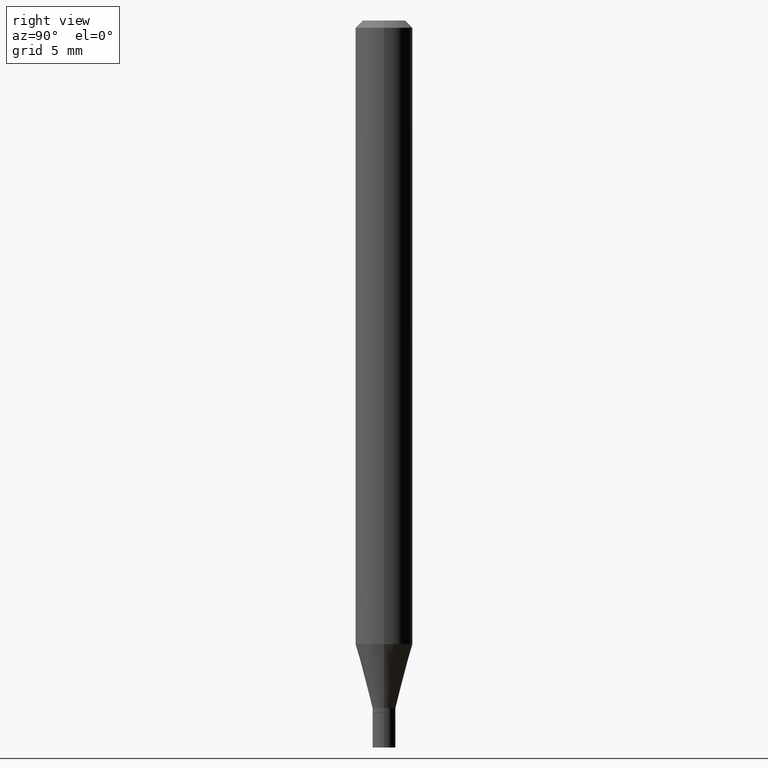
[diagram: clean part render]
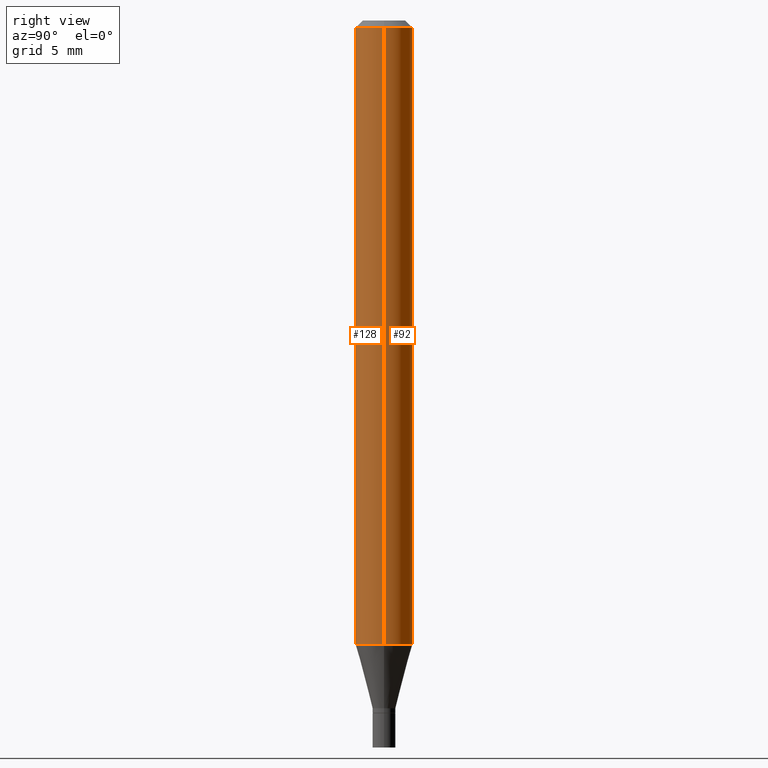
[diagram: same view with one multi-face feature highlighted, each face labeled with its STEP entity id]
A machine part, right view. The highlighted faces form ONE feature: a constant-radius fillet chain: 2 tangent blend faces with common blend radius 1.4999 mm. The faces share edges in the B-rep.
Their STEP definitions:
[1] entity #92 (Cylinder):
#3 = CYLINDRICAL_SURFACE ( 'NONE', #246, 0.05904999999999999832 ) ;
#6 = CARTESIAN_POINT ( 'NONE',  ( 0.05904999999999999832, -4.647161662000212105E-16, -0.01499999999999999944 ) ) ;
#8 = ORIENTED_EDGE ( 'NONE', *, *, #137, .T. ) ;
#21 = EDGE_CURVE ( 'NONE', #156, #453, #356, .T. ) ;
#27 = CARTESIAN_POINT ( 'NONE',  ( 0.05904999999999999832, -4.123439461173740327E-16, 2.879382386107500220E-30 ) ) ;
#45 = DIRECTION ( 'NONE',  ( -2.445468806185136877E-29, 3.491481338843145188E-15, 1.000000000000000000 ) ) ;
#59 = ORIENTED_EDGE ( 'NONE', *, *, #21, .F. ) ;
#79 = CARTESIAN_POINT ( 'NONE',  ( -0.05904999999999999832, 4.195754854663391478E-16, -2.904631170795521892E-30 ) ) ;
#88 = VECTOR ( 'NONE', #216, 39.37007874015748143 ) ;
#92 = ADVANCED_FACE ( 'NONE', ( #402 ), #3, .T. ) ;
#96 = ORIENTED_EDGE ( 'NONE', *, *, #193, .T. ) ;
#124 = DIRECTION ( 'NONE',  ( -2.445468806185136597E-29, 3.491481338843145583E-15, 1.000000000000000000 ) ) ;
#137 = EDGE_CURVE ( 'NONE', #192, #453, #457, .T. ) ;
#146 = CARTESIAN_POINT ( 'NONE',  ( -0.05904999999999999832, -4.072909359506036864E-15, -1.286698798871684257 ) ) ;
#156 = VERTEX_POINT ( 'NONE', #6 ) ;
#172 = DIRECTION ( 'NONE',  ( 1.000000000000000000, -6.982962677686266711E-15, 4.876176775795936353E-29 ) ) ;
#185 = CIRCLE ( 'NONE', #266, 0.05904999999999999832 ) ;
#192 = VERTEX_POINT ( 'NONE', #146 ) ;
#193 = EDGE_CURVE ( 'NONE', #280, #192, #185, .T. ) ;
#216 = DIRECTION ( 'NONE',  ( -2.445468806185136877E-29, 3.491481338843145188E-15, 1.000000000000000000 ) ) ;
#218 = VECTOR ( 'NONE', #45, 39.37007874015748143 ) ;
#224 = CARTESIAN_POINT ( 'NONE',  ( 0.05904999999999999832, -4.904828791089749700E-15, -1.286698798871684257 ) ) ;
#232 = EDGE_LOOP ( 'NONE', ( #96, #8, #59, #381 ) ) ;
#246 = AXIS2_PLACEMENT_3D ( 'NONE', #255, #291, #172 ) ;
#255 = CARTESIAN_POINT ( 'NONE',  ( 0.000000000000000000, 0.000000000000000000, 0.000000000000000000 ) ) ;
#266 = AXIS2_PLACEMENT_3D ( 'NONE', #377, #124, #295 ) ;
#280 = VERTEX_POINT ( 'NONE', #224 ) ;
#291 = DIRECTION ( 'NONE',  ( -2.445468806185136597E-29, 3.491481338843145583E-15, 1.000000000000000000 ) ) ;
#295 = DIRECTION ( 'NONE',  ( 1.000000000000000000, -6.982962677686273021E-15, 0.000000000000000000 ) ) ;
#297 = AXIS2_PLACEMENT_3D ( 'NONE', #343, #458, #454 ) ;
#328 = CARTESIAN_POINT ( 'NONE',  ( -0.05904999999999999832, -1.852853047061172422E-15, -0.01499999999999999944 ) ) ;
#343 = CARTESIAN_POINT ( 'NONE',  ( 3.668203209277705088E-31, -5.237222008264718399E-17, -0.01499999999999999944 ) ) ;
#356 = CIRCLE ( 'NONE', #297, 0.05904999999999999832 ) ;
#377 = CARTESIAN_POINT ( 'NONE',  ( 3.146581775596586990E-29, -4.492484844972376357E-15, -1.286698798871684257 ) ) ;
#381 = ORIENTED_EDGE ( 'NONE', *, *, #388, .F. ) ;
#388 = EDGE_CURVE ( 'NONE', #280, #156, #416, .T. ) ;
#402 = FACE_OUTER_BOUND ( 'NONE', #232, .T. ) ;
#416 = LINE ( 'NONE', #27, #218 ) ;
#453 = VERTEX_POINT ( 'NONE', #328 ) ;
#454 = DIRECTION ( 'NONE',  ( 1.000000000000000000, -6.982962677686266711E-15, 0.000000000000000000 ) ) ;
#457 = LINE ( 'NONE', #79, #88 ) ;
#458 = DIRECTION ( 'NONE',  ( -2.445468806185136597E-29, 3.491481338843145583E-15, 1.000000000000000000 ) ) ;
[2] entity #128 (Cylinder):
#6 = CARTESIAN_POINT ( 'NONE',  ( 0.05904999999999999832, -4.647161662000212105E-16, -0.01499999999999999944 ) ) ;
#12 = ORIENTED_EDGE ( 'NONE', *, *, #83, .T. ) ;
#16 = DIRECTION ( 'NONE',  ( 1.000000000000000000, -6.982962677686266711E-15, 4.876176775795936353E-29 ) ) ;
#27 = CARTESIAN_POINT ( 'NONE',  ( 0.05904999999999999832, -4.123439461173740327E-16, 2.879382386107500220E-30 ) ) ;
#45 = DIRECTION ( 'NONE',  ( -2.445468806185136877E-29, 3.491481338843145188E-15, 1.000000000000000000 ) ) ;
#52 = DIRECTION ( 'NONE',  ( 1.000000000000000000, -6.982962677686273021E-15, 0.000000000000000000 ) ) ;
#79 = CARTESIAN_POINT ( 'NONE',  ( -0.05904999999999999832, 4.195754854663391478E-16, -2.904631170795521892E-30 ) ) ;
#83 = EDGE_CURVE ( 'NONE', #192, #280, #312, .T. ) ;
#88 = VECTOR ( 'NONE', #216, 39.37007874015748143 ) ;
#102 = DIRECTION ( 'NONE',  ( -2.445468806185136597E-29, 3.491481338843145583E-15, 1.000000000000000000 ) ) ;
#123 = CYLINDRICAL_SURFACE ( 'NONE', #134, 0.05904999999999999832 ) ;
#128 = ADVANCED_FACE ( 'NONE', ( #152 ), #123, .T. ) ;
#134 = AXIS2_PLACEMENT_3D ( 'NONE', #423, #340, #16 ) ;
#137 = EDGE_CURVE ( 'NONE', #192, #453, #457, .T. ) ;
#146 = CARTESIAN_POINT ( 'NONE',  ( -0.05904999999999999832, -4.072909359506036864E-15, -1.286698798871684257 ) ) ;
#152 = FACE_OUTER_BOUND ( 'NONE', #345, .T. ) ;
#156 = VERTEX_POINT ( 'NONE', #6 ) ;
#192 = VERTEX_POINT ( 'NONE', #146 ) ;
#210 = DIRECTION ( 'NONE',  ( 1.000000000000000000, -6.982962677686266711E-15, 0.000000000000000000 ) ) ;
#216 = DIRECTION ( 'NONE',  ( -2.445468806185136877E-29, 3.491481338843145188E-15, 1.000000000000000000 ) ) ;
#218 = VECTOR ( 'NONE', #45, 39.37007874015748143 ) ;
#224 = CARTESIAN_POINT ( 'NONE',  ( 0.05904999999999999832, -4.904828791089749700E-15, -1.286698798871684257 ) ) ;
#226 = DIRECTION ( 'NONE',  ( -2.445468806185136597E-29, 3.491481338843145583E-15, 1.000000000000000000 ) ) ;
#227 = ORIENTED_EDGE ( 'NONE', *, *, #388, .T. ) ;
#245 = CARTESIAN_POINT ( 'NONE',  ( 3.668203209277705088E-31, -5.237222008264718399E-17, -0.01499999999999999944 ) ) ;
#257 = ORIENTED_EDGE ( 'NONE', *, *, #137, .F. ) ;
#261 = CIRCLE ( 'NONE', #337, 0.05904999999999999832 ) ;
#280 = VERTEX_POINT ( 'NONE', #224 ) ;
#312 = CIRCLE ( 'NONE', #394, 0.05904999999999999832 ) ;
#328 = CARTESIAN_POINT ( 'NONE',  ( -0.05904999999999999832, -1.852853047061172422E-15, -0.01499999999999999944 ) ) ;
#337 = AXIS2_PLACEMENT_3D ( 'NONE', #245, #102, #210 ) ;
#340 = DIRECTION ( 'NONE',  ( -2.445468806185136597E-29, 3.491481338843145583E-15, 1.000000000000000000 ) ) ;
#345 = EDGE_LOOP ( 'NONE', ( #257, #12, #227, #404 ) ) ;
#351 = EDGE_CURVE ( 'NONE', #453, #156, #261, .T. ) ;
#388 = EDGE_CURVE ( 'NONE', #280, #156, #416, .T. ) ;
#394 = AXIS2_PLACEMENT_3D ( 'NONE', #440, #226, #52 ) ;
#404 = ORIENTED_EDGE ( 'NONE', *, *, #351, .F. ) ;
#416 = LINE ( 'NONE', #27, #218 ) ;
#423 = CARTESIAN_POINT ( 'NONE',  ( 0.000000000000000000, 0.000000000000000000, 0.000000000000000000 ) ) ;
#440 = CARTESIAN_POINT ( 'NONE',  ( 3.146581775596586990E-29, -4.492484844972376357E-15, -1.286698798871684257 ) ) ;
#453 = VERTEX_POINT ( 'NONE', #328 ) ;
#457 = LINE ( 'NONE', #79, #88 ) ;